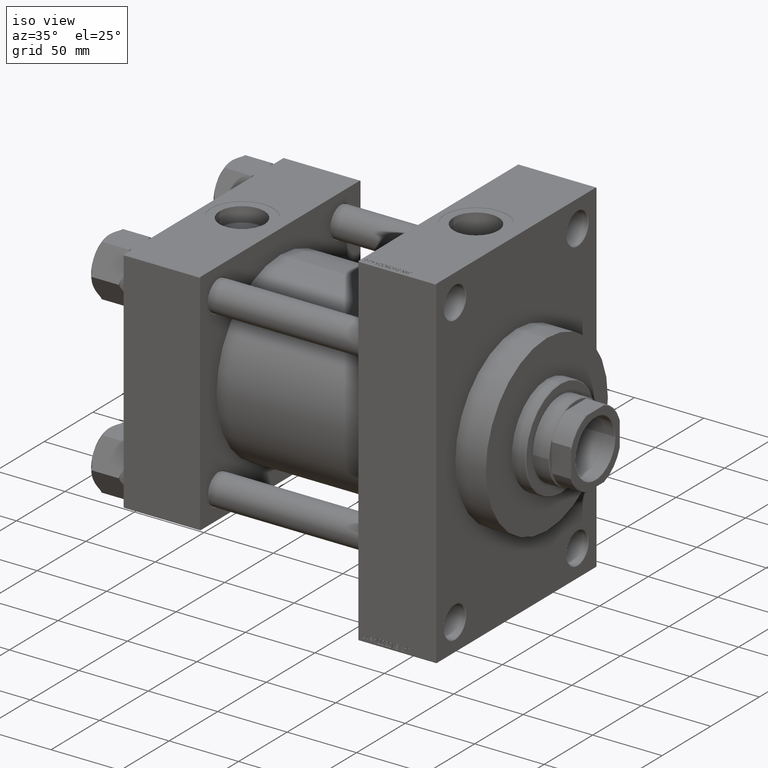
[diagram: clean part render]
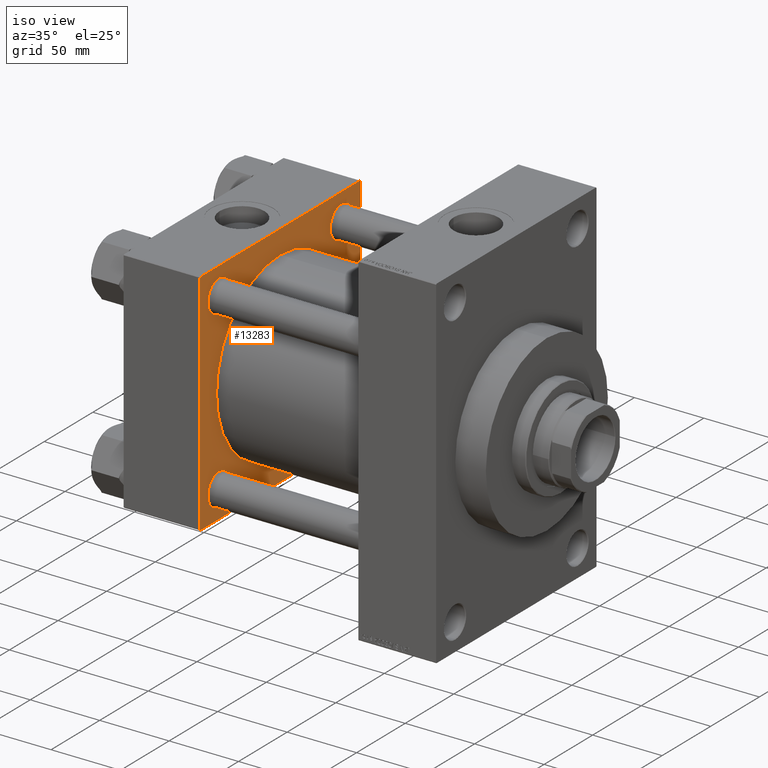
[diagram: same view with one face highlighted and labeled with its STEP entity id]
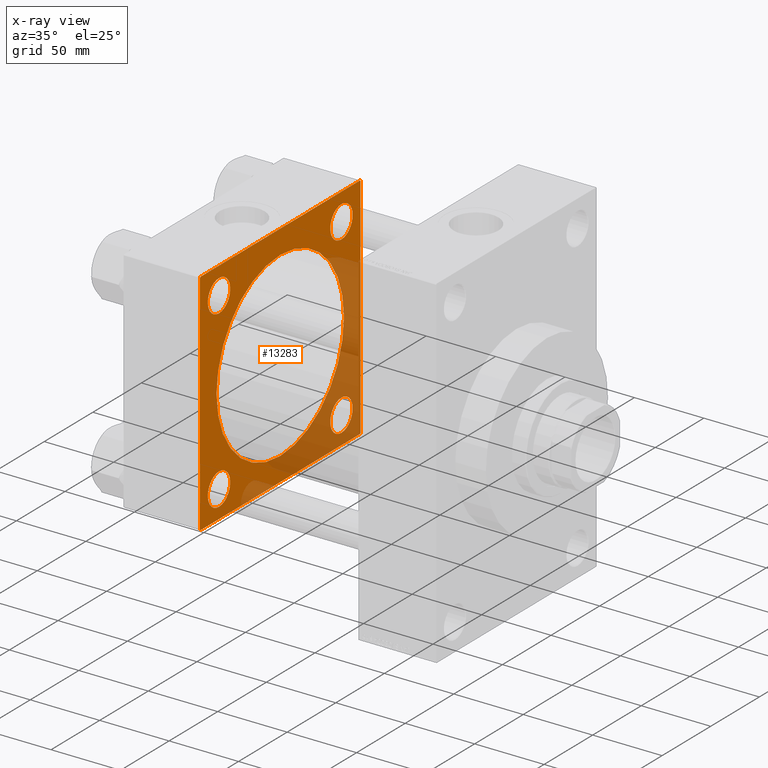
[diagram: x-ray of the same camera — body ghosted, the highlighted face saturated]
A machine part, iso view. The second image highlights one B-rep face of the part: STEP entity #13283.
The next image is the same camera in x-ray: the body ghosted, the highlighted face saturated — about 34% of this face is hidden behind the body in this view.
In plain terms, the highlighted planar face has unit normal (-1, 0, 0).
Its self-contained STEP definition (entity closure, byte-faithful):
#337 = CARTESIAN_POINT ( 'NONE',  ( 55.00000000000000000, -62.94999999999998153, -74.45000000000003126 ) ) ;
#359 = DIRECTION ( 'NONE',  ( 1.000000000000000000, -0.000000000000000000, -0.000000000000000000 ) ) ;
#1265 = DIRECTION ( 'NONE',  ( -0.000000000000000000, 0.7071067811865474617, 0.7071067811865474617 ) ) ;
#1950 = CARTESIAN_POINT ( 'NONE',  ( 54.99999999999999289, -2.602085213965210642E-15, 65.50000000000001421 ) ) ;
#2426 = DIRECTION ( 'NONE',  ( -1.000000000000000000, 0.000000000000000000, 0.000000000000000000 ) ) ;
#3137 = CARTESIAN_POINT ( 'NONE',  ( 55.00000000000000000, 62.95000000000000284, 62.95000000000000284 ) ) ;
#3147 = CARTESIAN_POINT ( 'NONE',  ( 55.00000000000000000, -62.94999999999998153, -62.95000000000001705 ) ) ;
#3671 = ORIENTED_EDGE ( 'NONE', *, *, #29676, .T. ) ;
#3753 = VECTOR ( 'NONE', #12423, 1000.000000000000000 ) ;
#3917 = FACE_BOUND ( 'NONE', #48887, .T. ) ;
#4155 = FACE_BOUND ( 'NONE', #23307, .T. ) ;
#4494 = CARTESIAN_POINT ( 'NONE',  ( 55.00000000000000000, -62.94999999999998153, 74.45000000000003126 ) ) ;
#4523 = VERTEX_POINT ( 'NONE', #7574 ) ;
#4532 = ORIENTED_EDGE ( 'NONE', *, *, #14715, .T. ) ;
#4791 = VERTEX_POINT ( 'NONE', #4494 ) ;
#5168 = VERTEX_POINT ( 'NONE', #13690 ) ;
#5445 = CARTESIAN_POINT ( 'NONE',  ( 55.00000000000000000, -62.94999999999998153, 62.95000000000001705 ) ) ;
#5932 = VERTEX_POINT ( 'NONE', #47551 ) ;
#6107 = AXIS2_PLACEMENT_3D ( 'NONE', #3137, #25903, #41431 ) ;
#6882 = CARTESIAN_POINT ( 'NONE',  ( 55.00000000000000000, 82.50000000000002842, 82.50000000000002842 ) ) ;
#6889 = DIRECTION ( 'NONE',  ( 0.000000000000000000, 0.000000000000000000, 1.000000000000000000 ) ) ;
#6928 = ORIENTED_EDGE ( 'NONE', *, *, #24863, .F. ) ;
#7431 = DIRECTION ( 'NONE',  ( 0.000000000000000000, -1.682156097916903588E-16, -1.000000000000000000 ) ) ;
#7540 = VECTOR ( 'NONE', #26019, 1000.000000000000000 ) ;
#7546 = DIRECTION ( 'NONE',  ( 0.000000000000000000, 0.000000000000000000, 1.000000000000000000 ) ) ;
#7574 = CARTESIAN_POINT ( 'NONE',  ( 55.00000000000000000, -62.94999999999998153, -51.45000000000000995 ) ) ;
#7664 = PLANE ( 'NONE',  #39720 ) ;
#7798 = EDGE_CURVE ( 'NONE', #12408, #37612, #47570, .T. ) ;
#8776 = ORIENTED_EDGE ( 'NONE', *, *, #40135, .T. ) ;
#9142 = VERTEX_POINT ( 'NONE', #45164 ) ;
#9587 = VERTEX_POINT ( 'NONE', #41486 ) ;
#10558 = ORIENTED_EDGE ( 'NONE', *, *, #12486, .T. ) ;
#10684 = CARTESIAN_POINT ( 'NONE',  ( 55.00000000000000000, 62.95000000000000284, 74.45000000000001705 ) ) ;
#10984 = EDGE_LOOP ( 'NONE', ( #11339, #36519 ) ) ;
#11339 = ORIENTED_EDGE ( 'NONE', *, *, #40074, .T. ) ;
#11781 = DIRECTION ( 'NONE',  ( -1.000000000000000000, 0.000000000000000000, 0.000000000000000000 ) ) ;
#12101 = VERTEX_POINT ( 'NONE', #33018 ) ;
#12408 = VERTEX_POINT ( 'NONE', #23348 ) ;
#12423 = DIRECTION ( 'NONE',  ( 0.000000000000000000, 0.000000000000000000, -1.000000000000000000 ) ) ;
#12486 = EDGE_CURVE ( 'NONE', #4791, #46104, #34106, .T. ) ;
#13112 = ORIENTED_EDGE ( 'NONE', *, *, #27366, .F. ) ;
#13277 = ORIENTED_EDGE ( 'NONE', *, *, #35776, .T. ) ;
#13283 = ADVANCED_FACE ( 'NONE', ( #18216, #28727, #37725, #3917, #4155, #26936 ), #7664, .F. ) ;
#13605 = CARTESIAN_POINT ( 'NONE',  ( 55.00000000000000000, -82.00000000000000000, -82.50000000000000000 ) ) ;
#13690 = CARTESIAN_POINT ( 'NONE',  ( 55.00000000000000000, -82.00000000000000000, -82.50000000000000000 ) ) ;
#13990 = DIRECTION ( 'NONE',  ( 0.000000000000000000, 0.000000000000000000, 1.000000000000000000 ) ) ;
#14347 = CIRCLE ( 'NONE', #25547, 11.50000000000001066 ) ;
#14715 = EDGE_CURVE ( 'NONE', #17388, #5932, #18345, .T. ) ;
#15125 = DIRECTION ( 'NONE',  ( -1.000000000000000000, 0.000000000000000000, 0.000000000000000000 ) ) ;
#15300 = CARTESIAN_POINT ( 'NONE',  ( 55.00000000000000000, 62.95000000000000284, 62.95000000000000284 ) ) ;
#15712 = VECTOR ( 'NONE', #7431, 1000.000000000000000 ) ;
#16073 = EDGE_CURVE ( 'NONE', #41842, #12101, #20633, .T. ) ;
#17111 = DIRECTION ( 'NONE',  ( 0.000000000000000000, 0.7071067811865376918, -0.7071067811865574537 ) ) ;
#17388 = VERTEX_POINT ( 'NONE', #23320 ) ;
#17420 = DIRECTION ( 'NONE',  ( 0.000000000000000000, -1.000000000000000000, -8.410780489584519171E-17 ) ) ;
#17779 = CARTESIAN_POINT ( 'NONE',  ( 55.00000000000000000, 82.50000000000002842, -82.49999999999997158 ) ) ;
#18216 = FACE_BOUND ( 'NONE', #10984, .T. ) ;
#18249 = ORIENTED_EDGE ( 'NONE', *, *, #7798, .T. ) ;
#18345 = LINE ( 'NONE', #33612, #42147 ) ;
#18409 = CARTESIAN_POINT ( 'NONE',  ( 54.99999999999999289, 5.419351320449953395E-15, -65.50000000000001421 ) ) ;
#18414 = CARTESIAN_POINT ( 'NONE',  ( 55.00000000000000000, 82.50000000000002842, 82.00000000000005684 ) ) ;
#18456 = CARTESIAN_POINT ( 'NONE',  ( 55.00000000000000000, 0.000000000000000000, 0.000000000000000000 ) ) ;
#19014 = DIRECTION ( 'NONE',  ( -1.000000000000000000, 0.000000000000000000, 0.000000000000000000 ) ) ;
#19053 = DIRECTION ( 'NONE',  ( 0.000000000000000000, 0.000000000000000000, 1.000000000000000000 ) ) ;
#19380 = CARTESIAN_POINT ( 'NONE',  ( 54.99999999999999289, -2.602085213965210642E-15, 0.000000000000000000 ) ) ;
#19625 = VECTOR ( 'NONE', #17420, 1000.000000000000000 ) ;
#20083 = CARTESIAN_POINT ( 'NONE',  ( 55.00000000000000000, 82.00000000000005684, 82.50000000000002842 ) ) ;
#20633 = CIRCLE ( 'NONE', #48627, 11.50000000000001066 ) ;
#21172 = DIRECTION ( 'NONE',  ( -1.000000000000000000, 0.000000000000000000, 0.000000000000000000 ) ) ;
#21667 = DIRECTION ( 'NONE',  ( -1.000000000000000000, 0.000000000000000000, 0.000000000000000000 ) ) ;
#21934 = CARTESIAN_POINT ( 'NONE',  ( 55.00000000000000000, -62.94999999999998153, 51.45000000000000995 ) ) ;
#22590 = ORIENTED_EDGE ( 'NONE', *, *, #34706, .F. ) ;
#23003 = EDGE_CURVE ( 'NONE', #34962, #9587, #31349, .T. ) ;
#23307 = EDGE_LOOP ( 'NONE', ( #32856, #13112 ) ) ;
#23320 = CARTESIAN_POINT ( 'NONE',  ( 55.00000000000000000, -81.99999999999997158, 82.50000000000001421 ) ) ;
#23348 = CARTESIAN_POINT ( 'NONE',  ( 55.00000000000000000, 82.00000000000005684, -82.49999999999997158 ) ) ;
#24615 = EDGE_CURVE ( 'NONE', #38830, #39307, #31523, .T. ) ;
#24863 = EDGE_CURVE ( 'NONE', #12408, #5168, #44556, .T. ) ;
#25283 = ORIENTED_EDGE ( 'NONE', *, *, #33980, .T. ) ;
#25371 = AXIS2_PLACEMENT_3D ( 'NONE', #5445, #2426, #28719 ) ;
#25547 = AXIS2_PLACEMENT_3D ( 'NONE', #28689, #21172, #6889 ) ;
#25903 = DIRECTION ( 'NONE',  ( -1.000000000000000000, 0.000000000000000000, 0.000000000000000000 ) ) ;
#26019 = DIRECTION ( 'NONE',  ( 0.000000000000000000, -1.000000000000000000, -1.682156097916903588E-16 ) ) ;
#26408 = AXIS2_PLACEMENT_3D ( 'NONE', #15300, #11781, #19053 ) ;
#26752 = CARTESIAN_POINT ( 'NONE',  ( 55.00000000000000000, 82.50000000000002842, 82.50000000000002842 ) ) ;
#26936 = FACE_OUTER_BOUND ( 'NONE', #31737, .T. ) ;
#27065 = ORIENTED_EDGE ( 'NONE', *, *, #38270, .T. ) ;
#27195 = CIRCLE ( 'NONE', #26408, 11.50000000000001066 ) ;
#27366 = EDGE_CURVE ( 'NONE', #39307, #38830, #34025, .T. ) ;
#27822 = EDGE_LOOP ( 'NONE', ( #42487, #8776 ) ) ;
#28184 = CARTESIAN_POINT ( 'NONE',  ( 55.00000000000000000, -62.94999999999998153, -62.95000000000001705 ) ) ;
#28689 = CARTESIAN_POINT ( 'NONE',  ( 55.00000000000000000, 62.95000000000000284, -62.95000000000000284 ) ) ;
#28719 = DIRECTION ( 'NONE',  ( 0.000000000000000000, 0.000000000000000000, 1.000000000000000000 ) ) ;
#28727 = FACE_BOUND ( 'NONE', #27822, .T. ) ;
#28999 = CARTESIAN_POINT ( 'NONE',  ( 55.00000000000000000, 62.95000000000000284, -62.95000000000000284 ) ) ;
#29676 = EDGE_CURVE ( 'NONE', #5932, #36714, #34235, .T. ) ;
#30435 = EDGE_CURVE ( 'NONE', #9587, #17388, #33431, .T. ) ;
#30626 = DIRECTION ( 'NONE',  ( 0.000000000000000000, 0.000000000000000000, 1.000000000000000000 ) ) ;
#30642 = EDGE_LOOP ( 'NONE', ( #13277, #10558 ) ) ;
#30892 = DIRECTION ( 'NONE',  ( 0.000000000000000000, 0.000000000000000000, 1.000000000000000000 ) ) ;
#31349 = LINE ( 'NONE', #20083, #48261 ) ;
#31447 = DIRECTION ( 'NONE',  ( 0.000000000000000000, 0.000000000000000000, 1.000000000000000000 ) ) ;
#31523 = CIRCLE ( 'NONE', #35524, 65.50000000000001421 ) ;
#31737 = EDGE_LOOP ( 'NONE', ( #6928, #18249, #22590, #43258, #39661, #4532, #3671, #27065 ) ) ;
#32856 = ORIENTED_EDGE ( 'NONE', *, *, #24615, .F. ) ;
#32939 = DIRECTION ( 'NONE',  ( 0.000000000000000000, 0.000000000000000000, 1.000000000000000000 ) ) ;
#33018 = CARTESIAN_POINT ( 'NONE',  ( 55.00000000000000000, 62.95000000000000284, -51.44999999999999574 ) ) ;
#33431 = LINE ( 'NONE', #6882, #19625 ) ;
#33612 = CARTESIAN_POINT ( 'NONE',  ( 55.00000000000000000, -82.49999999999997158, 82.00000000000001421 ) ) ;
#33759 = VERTEX_POINT ( 'NONE', #10684 ) ;
#33963 = CARTESIAN_POINT ( 'NONE',  ( 55.00000000000000000, -82.50000000000000000, -81.99999999999998579 ) ) ;
#33980 = EDGE_CURVE ( 'NONE', #9142, #33759, #39716, .T. ) ;
#34025 = CIRCLE ( 'NONE', #47613, 65.50000000000001421 ) ;
#34106 = CIRCLE ( 'NONE', #41288, 11.50000000000001066 ) ;
#34235 = LINE ( 'NONE', #37985, #15712 ) ;
#34339 = AXIS2_PLACEMENT_3D ( 'NONE', #3147, #21667, #32939 ) ;
#34698 = EDGE_CURVE ( 'NONE', #4523, #48992, #38141, .T. ) ;
#34706 = EDGE_CURVE ( 'NONE', #34962, #37612, #45791, .T. ) ;
#34962 = VERTEX_POINT ( 'NONE', #18414 ) ;
#35127 = CIRCLE ( 'NONE', #34339, 11.50000000000001066 ) ;
#35524 = AXIS2_PLACEMENT_3D ( 'NONE', #45605, #48881, #7546 ) ;
#35557 = CARTESIAN_POINT ( 'NONE',  ( 55.00000000000000000, 82.50000000000002842, -82.00000000000000000 ) ) ;
#35776 = EDGE_CURVE ( 'NONE', #46104, #4791, #42987, .T. ) ;
#36519 = ORIENTED_EDGE ( 'NONE', *, *, #34698, .T. ) ;
#36714 = VERTEX_POINT ( 'NONE', #33963 ) ;
#37467 = VECTOR ( 'NONE', #17111, 999.9999999999998863 ) ;
#37612 = VERTEX_POINT ( 'NONE', #35557 ) ;
#37725 = FACE_BOUND ( 'NONE', #30642, .T. ) ;
#37985 = CARTESIAN_POINT ( 'NONE',  ( 55.00000000000000000, -82.49999999999997158, 82.50000000000001421 ) ) ;
#38141 = CIRCLE ( 'NONE', #46141, 11.50000000000001066 ) ;
#38270 = EDGE_CURVE ( 'NONE', #36714, #5168, #47155, .T. ) ;
#38621 = CARTESIAN_POINT ( 'NONE',  ( 55.00000000000000000, -62.94999999999998153, 62.95000000000001705 ) ) ;
#38830 = VERTEX_POINT ( 'NONE', #1950 ) ;
#39307 = VERTEX_POINT ( 'NONE', #18409 ) ;
#39313 = CARTESIAN_POINT ( 'NONE',  ( 55.00000000000000000, 82.50000000000002842, -82.00000000000000000 ) ) ;
#39661 = ORIENTED_EDGE ( 'NONE', *, *, #30435, .T. ) ;
#39716 = CIRCLE ( 'NONE', #6107, 11.50000000000001066 ) ;
#39720 = AXIS2_PLACEMENT_3D ( 'NONE', #18456, #49239, #48996 ) ;
#40074 = EDGE_CURVE ( 'NONE', #48992, #4523, #35127, .T. ) ;
#40135 = EDGE_CURVE ( 'NONE', #12101, #41842, #14347, .T. ) ;
#41259 = DIRECTION ( 'NONE',  ( -1.000000000000000000, 0.000000000000000000, 0.000000000000000000 ) ) ;
#41288 = AXIS2_PLACEMENT_3D ( 'NONE', #38621, #15125, #30626 ) ;
#41431 = DIRECTION ( 'NONE',  ( 0.000000000000000000, 0.000000000000000000, 1.000000000000000000 ) ) ;
#41486 = CARTESIAN_POINT ( 'NONE',  ( 55.00000000000000000, 82.00000000000005684, 82.50000000000002842 ) ) ;
#41842 = VERTEX_POINT ( 'NONE', #48234 ) ;
#42147 = VECTOR ( 'NONE', #49130, 1000.000000000000114 ) ;
#42456 = EDGE_CURVE ( 'NONE', #33759, #9142, #27195, .T. ) ;
#42487 = ORIENTED_EDGE ( 'NONE', *, *, #16073, .T. ) ;
#42987 = CIRCLE ( 'NONE', #25371, 11.50000000000001066 ) ;
#43258 = ORIENTED_EDGE ( 'NONE', *, *, #23003, .T. ) ;
#44556 = LINE ( 'NONE', #17779, #7540 ) ;
#45164 = CARTESIAN_POINT ( 'NONE',  ( 55.00000000000000000, 62.95000000000000284, 51.44999999999999574 ) ) ;
#45605 = CARTESIAN_POINT ( 'NONE',  ( 54.99999999999999289, -2.602085213965210642E-15, 0.000000000000000000 ) ) ;
#45791 = LINE ( 'NONE', #26752, #3753 ) ;
#46104 = VERTEX_POINT ( 'NONE', #21934 ) ;
#46141 = AXIS2_PLACEMENT_3D ( 'NONE', #28184, #19014, #31447 ) ;
#46378 = DIRECTION ( 'NONE',  ( 0.000000000000000000, -0.7071067811865474617, 0.7071067811865474617 ) ) ;
#46754 = VECTOR ( 'NONE', #1265, 1000.000000000000114 ) ;
#47155 = LINE ( 'NONE', #13605, #37467 ) ;
#47213 = ORIENTED_EDGE ( 'NONE', *, *, #42456, .T. ) ;
#47551 = CARTESIAN_POINT ( 'NONE',  ( 55.00000000000000000, -82.49999999999997158, 82.00000000000001421 ) ) ;
#47570 = LINE ( 'NONE', #39313, #46754 ) ;
#47613 = AXIS2_PLACEMENT_3D ( 'NONE', #19380, #359, #30892 ) ;
#48234 = CARTESIAN_POINT ( 'NONE',  ( 55.00000000000000000, 62.95000000000000284, -74.45000000000001705 ) ) ;
#48261 = VECTOR ( 'NONE', #46378, 1000.000000000000114 ) ;
#48627 = AXIS2_PLACEMENT_3D ( 'NONE', #28999, #41259, #13990 ) ;
#48881 = DIRECTION ( 'NONE',  ( 1.000000000000000000, -0.000000000000000000, -0.000000000000000000 ) ) ;
#48887 = EDGE_LOOP ( 'NONE', ( #25283, #47213 ) ) ;
#48992 = VERTEX_POINT ( 'NONE', #337 ) ;
#48996 = DIRECTION ( 'NONE',  ( 0.000000000000000000, 0.000000000000000000, 1.000000000000000000 ) ) ;
#49130 = DIRECTION ( 'NONE',  ( -0.000000000000000000, -0.7071067811865474617, -0.7071067811865474617 ) ) ;
#49239 = DIRECTION ( 'NONE',  ( -1.000000000000000000, 0.000000000000000000, 0.000000000000000000 ) ) ;